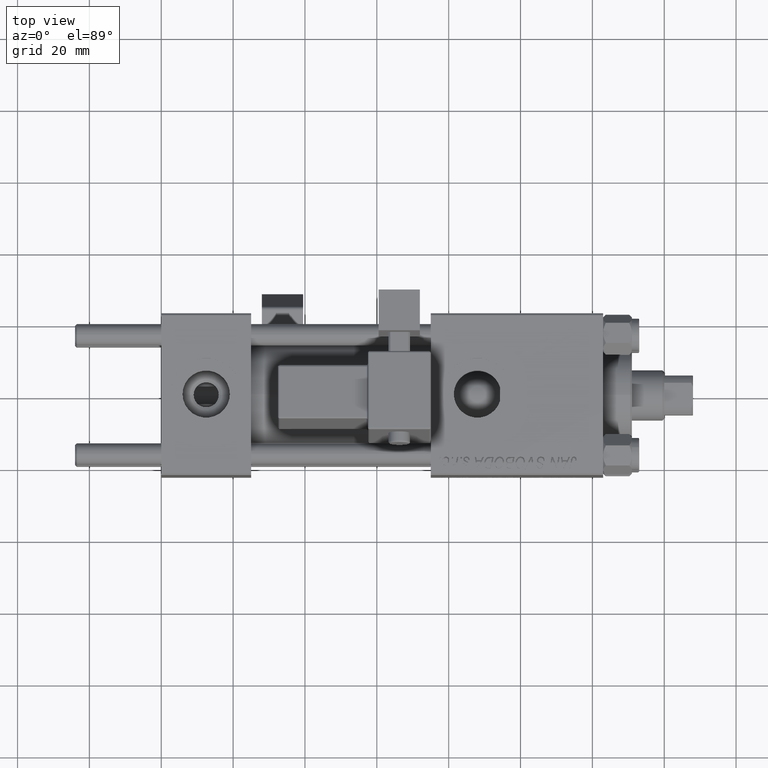
[diagram: clean part render]
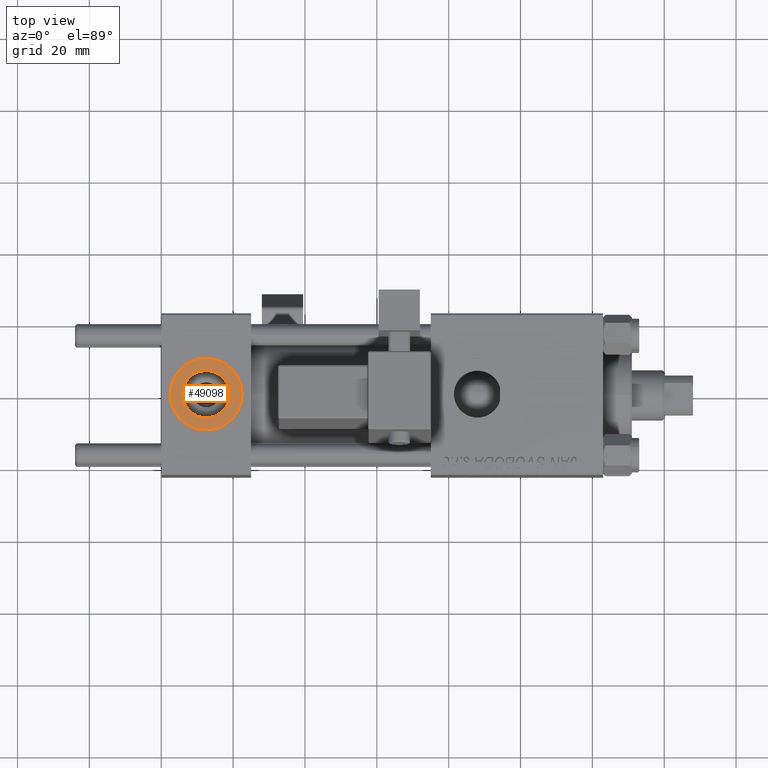
[diagram: same view with one face highlighted and labeled with its STEP entity id]
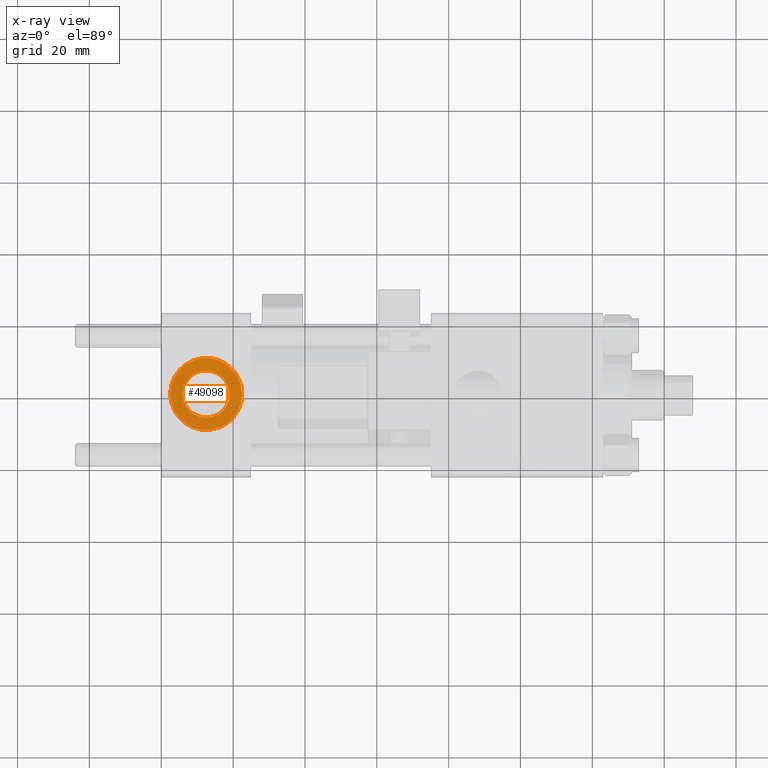
[diagram: x-ray of the same camera — body ghosted, the highlighted face saturated]
A machine part, top view. The second image highlights one B-rep face of the part: STEP entity #49098.
The next image is the same camera in x-ray: the body ghosted, the highlighted face saturated — about 0% of this face is hidden behind the body in this view.
In plain terms, the highlighted planar face has unit normal (0, 0, 1).
Its self-contained STEP definition (entity closure, byte-faithful):
#219 = CARTESIAN_POINT ( 'NONE',  ( 12.50000000000000000, -1.734723475976807094E-15, 22.30000000000000071 ) ) ;
#475 = FACE_BOUND ( 'NONE', #45594, .T. ) ;
#1129 = CIRCLE ( 'NONE', #29041, 6.579999999999999183 ) ;
#3461 = ORIENTED_EDGE ( 'NONE', *, *, #13841, .T. ) ;
#4698 = PLANE ( 'NONE',  #33880 ) ;
#6138 = EDGE_CURVE ( 'NONE', #24769, #21640, #26721, .T. ) ;
#13109 = VERTEX_POINT ( 'NONE', #36193 ) ;
#13535 = VERTEX_POINT ( 'NONE', #46038 ) ;
#13827 = CARTESIAN_POINT ( 'NONE',  ( 5.920000000000002593, -9.289058821378490386E-16, 22.30000000000000071 ) ) ;
#13841 = EDGE_CURVE ( 'NONE', #13535, #13109, #17057, .T. ) ;
#14279 = CIRCLE ( 'NONE', #15112, 9.999999999999998224 ) ;
#14929 = DIRECTION ( 'NONE',  ( 1.000000000000000000, 0.000000000000000000, 0.000000000000000000 ) ) ;
#15112 = AXIS2_PLACEMENT_3D ( 'NONE', #33498, #51150, #14929 ) ;
#17057 = CIRCLE ( 'NONE', #29717, 9.999999999999998224 ) ;
#17873 = EDGE_CURVE ( 'NONE', #21640, #24769, #1129, .T. ) ;
#19248 = CARTESIAN_POINT ( 'NONE',  ( 12.50000000000000000, -1.734723475976807094E-15, 22.30000000000000071 ) ) ;
#19516 = DIRECTION ( 'NONE',  ( 1.000000000000000000, 0.000000000000000000, 0.000000000000000000 ) ) ;
#20805 = AXIS2_PLACEMENT_3D ( 'NONE', #19248, #47524, #19516 ) ;
#21640 = VERTEX_POINT ( 'NONE', #37211 ) ;
#21930 = DIRECTION ( 'NONE',  ( 1.000000000000000000, 0.000000000000000000, 0.000000000000000000 ) ) ;
#24529 = CARTESIAN_POINT ( 'NONE',  ( 12.50000000000000000, -1.734723475976807094E-15, 22.30000000000000071 ) ) ;
#24769 = VERTEX_POINT ( 'NONE', #13827 ) ;
#25762 = ORIENTED_EDGE ( 'NONE', *, *, #43790, .T. ) ;
#26721 = CIRCLE ( 'NONE', #20805, 6.579999999999999183 ) ;
#29041 = AXIS2_PLACEMENT_3D ( 'NONE', #24529, #48054, #52019 ) ;
#29717 = AXIS2_PLACEMENT_3D ( 'NONE', #49435, #37491, #21930 ) ;
#32475 = ORIENTED_EDGE ( 'NONE', *, *, #17873, .F. ) ;
#33498 = CARTESIAN_POINT ( 'NONE',  ( 12.50000000000000000, -1.734723475976807094E-15, 22.30000000000000071 ) ) ;
#33880 = AXIS2_PLACEMENT_3D ( 'NONE', #219, #36945, #48881 ) ;
#36193 = CARTESIAN_POINT ( 'NONE',  ( 22.50000000000000000, -1.734723475976807094E-15, 22.30000000000000071 ) ) ;
#36945 = DIRECTION ( 'NONE',  ( 0.000000000000000000, 0.000000000000000000, 1.000000000000000000 ) ) ;
#37211 = CARTESIAN_POINT ( 'NONE',  ( 19.07999999999999829, -1.734723475976807094E-15, 22.30000000000000071 ) ) ;
#37491 = DIRECTION ( 'NONE',  ( 0.000000000000000000, 0.000000000000000000, 1.000000000000000000 ) ) ;
#40628 = ORIENTED_EDGE ( 'NONE', *, *, #6138, .F. ) ;
#43790 = EDGE_CURVE ( 'NONE', #13109, #13535, #14279, .T. ) ;
#44646 = FACE_OUTER_BOUND ( 'NONE', #48490, .T. ) ;
#45594 = EDGE_LOOP ( 'NONE', ( #32475, #40628 ) ) ;
#46038 = CARTESIAN_POINT ( 'NONE',  ( 2.500000000000003997, -5.100766768294543310E-16, 22.30000000000000071 ) ) ;
#47524 = DIRECTION ( 'NONE',  ( 0.000000000000000000, 0.000000000000000000, 1.000000000000000000 ) ) ;
#48054 = DIRECTION ( 'NONE',  ( 0.000000000000000000, 0.000000000000000000, 1.000000000000000000 ) ) ;
#48490 = EDGE_LOOP ( 'NONE', ( #25762, #3461 ) ) ;
#48881 = DIRECTION ( 'NONE',  ( 1.000000000000000000, 0.000000000000000000, -0.000000000000000000 ) ) ;
#49098 = ADVANCED_FACE ( 'NONE', ( #475, #44646 ), #4698, .T. ) ;
#49435 = CARTESIAN_POINT ( 'NONE',  ( 12.50000000000000000, -1.734723475976807094E-15, 22.30000000000000071 ) ) ;
#51150 = DIRECTION ( 'NONE',  ( 0.000000000000000000, 0.000000000000000000, 1.000000000000000000 ) ) ;
#52019 = DIRECTION ( 'NONE',  ( 1.000000000000000000, 0.000000000000000000, 0.000000000000000000 ) ) ;